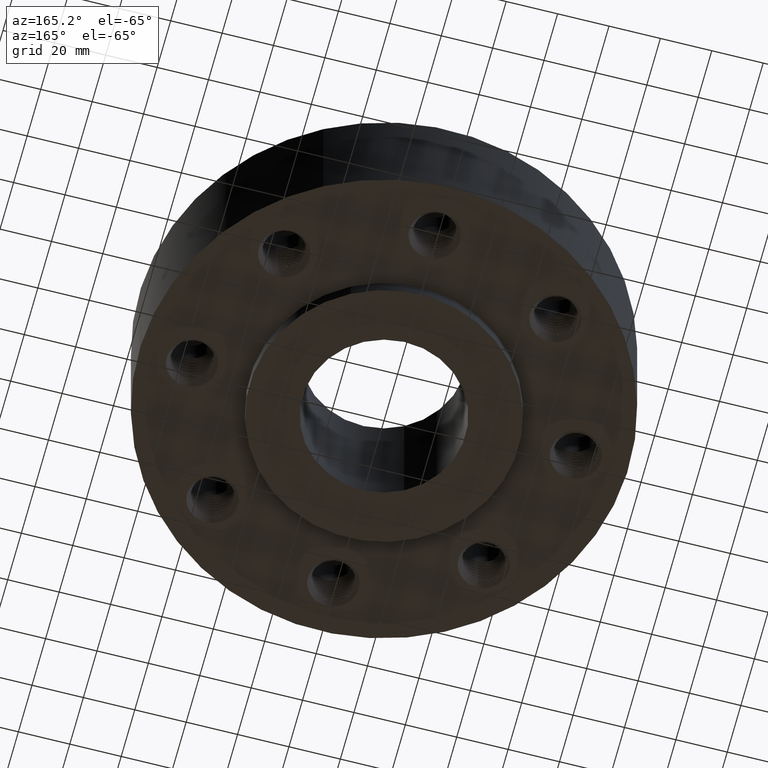
[diagram: clean part render]
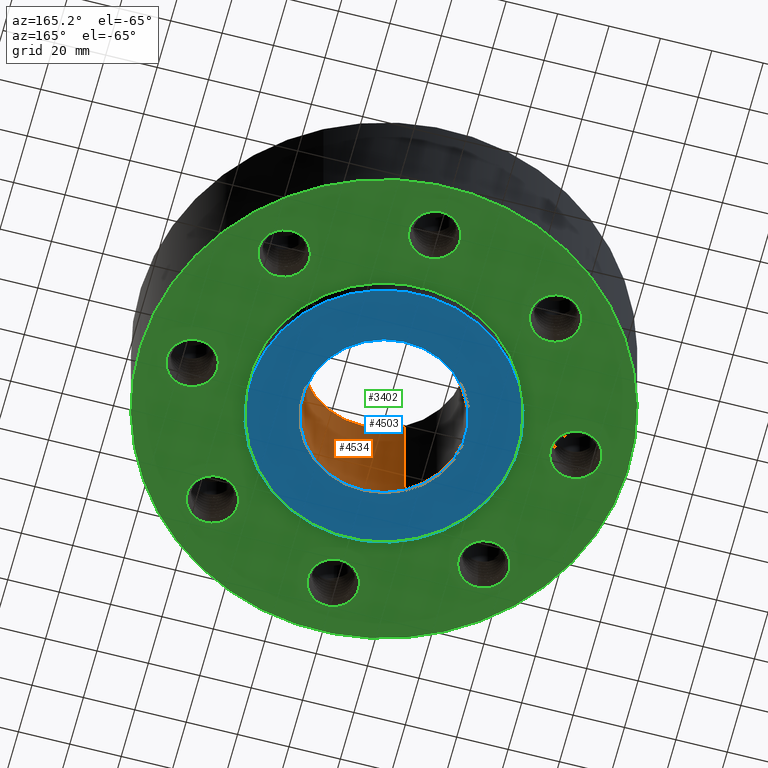
[diagram: same view with three faces highlighted in distinct colors, each labeled with its STEP entity id]
A machine part, auxiliary view with three faces highlighted in distinct colors.
Their STEP definitions:

[orange] entity #4534 — the highlighted cylindrical surface (partial cylindrical patch) has radius 31.75 mm, axis along (0, 0, -1).
#4487=AXIS2_PLACEMENT_3D('Circle Axis2P3D',#4485,#4486,$) ;
#4507=AXIS2_PLACEMENT_3D('Cylinder Axis2P3D',#4504,#4505,#4506) ;
#4511=AXIS2_PLACEMENT_3D('Circle Axis2P3D',#4509,#4510,$) ;
#4485=CARTESIAN_POINT('Axis2P3D Location',(0.,0.,-0.250000000001)) ;
#4489=CARTESIAN_POINT('Vertex',(0.599281923258,1.09697820237,-0.250000000001)) ;
#4491=CARTESIAN_POINT('Vertex',(-0.599281923258,-1.09697820237,-0.250000000001)) ;
#4504=CARTESIAN_POINT('Axis2P3D Location',(0.,0.,0.875000000003)) ;
#4509=CARTESIAN_POINT('Axis2P3D Location',(0.,0.,2.00000000001)) ;
#4513=CARTESIAN_POINT('Vertex',(0.599281923258,1.09697820237,2.00000000001)) ;
#4515=CARTESIAN_POINT('Vertex',(-0.599281923258,-1.09697820237,2.00000000001)) ;
#4518=CARTESIAN_POINT('Line Origine',(0.599281923258,1.09697820237,0.875000000003)) ;
#4523=CARTESIAN_POINT('Line Origine',(-0.599281923258,-1.09697820237,0.875000000003)) ;
#4486=DIRECTION('Axis2P3D Direction',(0.,0.,-0.0393700787402)) ;
#4505=DIRECTION('Axis2P3D Direction',(0.,0.,-0.0393700787402)) ;
#4506=DIRECTION('Axis2P3D XDirection',(-0.0188750212049,-0.0345504945626,0.)) ;
#4510=DIRECTION('Axis2P3D Direction',(0.,0.,-0.0393700787402)) ;
#4519=DIRECTION('Vector Direction',(0.,0.,-0.0393700787402)) ;
#4524=DIRECTION('Vector Direction',(0.,0.,-0.0393700787402)) ;
#4520=VECTOR('Line Direction',#4519,0.0393700787402) ;
#4525=VECTOR('Line Direction',#4524,0.0393700787402) ;
#4529=ORIENTED_EDGE('',*,*,#4517,.F.) ;
#4530=ORIENTED_EDGE('',*,*,#4522,.T.) ;
#4531=ORIENTED_EDGE('',*,*,#4493,.T.) ;
#4532=ORIENTED_EDGE('',*,*,#4527,.F.) ;
#4534=ADVANCED_FACE('PartBody',(#4533),#4508,.F.) ;
#4488=CIRCLE('generated circle',#4487,1.25000000001) ;
#4512=CIRCLE('generated circle',#4511,1.25000000001) ;
#4508=CYLINDRICAL_SURFACE('generated cylinder',#4507,1.25000000001) ;
#4493=EDGE_CURVE('',#4490,#4492,#4488,.T.) ;
#4517=EDGE_CURVE('',#4514,#4516,#4512,.T.) ;
#4522=EDGE_CURVE('',#4514,#4490,#4521,.T.) ;
#4527=EDGE_CURVE('',#4516,#4492,#4526,.T.) ;
#4528=EDGE_LOOP('',(#4529,#4530,#4531,#4532)) ;
#4533=FACE_OUTER_BOUND('',#4528,.T.) ;
#4521=LINE('Line',#4518,#4520) ;
#4526=LINE('Line',#4523,#4525) ;
#4490=VERTEX_POINT('',#4489) ;
#4492=VERTEX_POINT('',#4491) ;
#4514=VERTEX_POINT('',#4513) ;
#4516=VERTEX_POINT('',#4515) ;

[blue] entity #4503 — the highlighted planar face has unit normal (0, 0, -1).
#3453=AXIS2_PLACEMENT_3D('Circle Axis2P3D',#3451,#3452,$) ;
#3479=AXIS2_PLACEMENT_3D('Circle Axis2P3D',#3477,#3478,$) ;
#4479=AXIS2_PLACEMENT_3D('Plane Axis2P3D',#4476,#4477,#4478) ;
#4487=AXIS2_PLACEMENT_3D('Circle Axis2P3D',#4485,#4486,$) ;
#4496=AXIS2_PLACEMENT_3D('Circle Axis2P3D',#4494,#4495,$) ;
#3451=CARTESIAN_POINT('Axis2P3D Location',(0.,0.,-0.250000000001)) ;
#3455=CARTESIAN_POINT('Vertex',(0.987616609529,1.8078200775,-0.250000000001)) ;
#3457=CARTESIAN_POINT('Vertex',(-0.987616609529,-1.8078200775,-0.250000000001)) ;
#3477=CARTESIAN_POINT('Axis2P3D Location',(0.,0.,-0.250000000001)) ;
#4476=CARTESIAN_POINT('Axis2P3D Location',(0.,2.06000000001,-0.250000000001)) ;
#4485=CARTESIAN_POINT('Axis2P3D Location',(0.,0.,-0.250000000001)) ;
#4489=CARTESIAN_POINT('Vertex',(0.599281923258,1.09697820237,-0.250000000001)) ;
#4491=CARTESIAN_POINT('Vertex',(-0.599281923258,-1.09697820237,-0.250000000001)) ;
#4494=CARTESIAN_POINT('Axis2P3D Location',(0.,0.,-0.250000000001)) ;
#3452=DIRECTION('Axis2P3D Direction',(0.,0.,-0.0393700787402)) ;
#3478=DIRECTION('Axis2P3D Direction',(0.,0.,-0.0393700787402)) ;
#4477=DIRECTION('Axis2P3D Direction',(0.,0.,-0.0393700787402)) ;
#4478=DIRECTION('Axis2P3D XDirection',(0.0393700787402,0.,0.)) ;
#4486=DIRECTION('Axis2P3D Direction',(0.,0.,-0.0393700787402)) ;
#4495=DIRECTION('Axis2P3D Direction',(0.,0.,-0.0393700787402)) ;
#4482=ORIENTED_EDGE('',*,*,#3481,.T.) ;
#4483=ORIENTED_EDGE('',*,*,#3459,.T.) ;
#4500=ORIENTED_EDGE('',*,*,#4493,.F.) ;
#4501=ORIENTED_EDGE('',*,*,#4498,.F.) ;
#4502=FACE_BOUND('',#4499,.T.) ;
#4503=ADVANCED_FACE('PartBody',(#4484,#4502),#4480,.T.) ;
#3454=CIRCLE('generated circle',#3453,2.06000000001) ;
#3480=CIRCLE('generated circle',#3479,2.06000000001) ;
#4488=CIRCLE('generated circle',#4487,1.25000000001) ;
#4497=CIRCLE('generated circle',#4496,1.25000000001) ;
#3459=EDGE_CURVE('',#3456,#3458,#3454,.T.) ;
#3481=EDGE_CURVE('',#3458,#3456,#3480,.T.) ;
#4493=EDGE_CURVE('',#4490,#4492,#4488,.T.) ;
#4498=EDGE_CURVE('',#4492,#4490,#4497,.T.) ;
#4481=EDGE_LOOP('',(#4482,#4483)) ;
#4499=EDGE_LOOP('',(#4500,#4501)) ;
#4484=FACE_OUTER_BOUND('',#4481,.T.) ;
#4480=PLANE('',#4479) ;
#3456=VERTEX_POINT('',#3455) ;
#3458=VERTEX_POINT('',#3457) ;
#4490=VERTEX_POINT('',#4489) ;
#4492=VERTEX_POINT('',#4491) ;

[green] entity #3402 — the highlighted planar face has unit normal (0, 0, -1).
#3154=AXIS2_PLACEMENT_3D('Circle Axis2P3D',#3152,#3153,$) ;
#3220=AXIS2_PLACEMENT_3D('Circle Axis2P3D',#3218,#3219,$) ;
#3234=AXIS2_PLACEMENT_3D('Plane Axis2P3D',#3231,#3232,#3233) ;
#3238=AXIS2_PLACEMENT_3D('Circle Axis2P3D',#3236,#3237,$) ;
#3247=AXIS2_PLACEMENT_3D('Circle Axis2P3D',#3245,#3246,$) ;
#3260=AXIS2_PLACEMENT_3D('Circle Axis2P3D',#3258,#3259,$) ;
#3269=AXIS2_PLACEMENT_3D('Circle Axis2P3D',#3267,#3268,$) ;
#3278=AXIS2_PLACEMENT_3D('Circle Axis2P3D',#3276,#3277,$) ;
#3287=AXIS2_PLACEMENT_3D('Circle Axis2P3D',#3285,#3286,$) ;
#3296=AXIS2_PLACEMENT_3D('Circle Axis2P3D',#3294,#3295,$) ;
#3305=AXIS2_PLACEMENT_3D('Circle Axis2P3D',#3303,#3304,$) ;
#3314=AXIS2_PLACEMENT_3D('Circle Axis2P3D',#3312,#3313,$) ;
#3323=AXIS2_PLACEMENT_3D('Circle Axis2P3D',#3321,#3322,$) ;
#3332=AXIS2_PLACEMENT_3D('Circle Axis2P3D',#3330,#3331,$) ;
#3341=AXIS2_PLACEMENT_3D('Circle Axis2P3D',#3339,#3340,$) ;
#3350=AXIS2_PLACEMENT_3D('Circle Axis2P3D',#3348,#3349,$) ;
#3359=AXIS2_PLACEMENT_3D('Circle Axis2P3D',#3357,#3358,$) ;
#3368=AXIS2_PLACEMENT_3D('Circle Axis2P3D',#3366,#3367,$) ;
#3377=AXIS2_PLACEMENT_3D('Circle Axis2P3D',#3375,#3376,$) ;
#3386=AXIS2_PLACEMENT_3D('Circle Axis2P3D',#3384,#3385,$) ;
#3395=AXIS2_PLACEMENT_3D('Circle Axis2P3D',#3393,#3394,$) ;
#3149=CARTESIAN_POINT('Vertex',(2.4195276081,2.26498295951,0.)) ;
#3152=CARTESIAN_POINT('Axis2P3D Location',(2.0788939367,2.0788939367,0.)) ;
#3156=CARTESIAN_POINT('Vertex',(1.7382602653,1.89280491389,0.)) ;
#3218=CARTESIAN_POINT('Axis2P3D Location',(2.0788939367,2.0788939367,0.)) ;
#3231=CARTESIAN_POINT('Axis2P3D Location',(0.,3.75000000002,0.)) ;
#3236=CARTESIAN_POINT('Axis2P3D Location',(0.,0.,0.)) ;
#3240=CARTESIAN_POINT('Vertex',(-1.79784576977,-3.2909346071,-3.83245491335E-014)) ;
#3242=CARTESIAN_POINT('Vertex',(1.79784576977,3.2909346071,-3.83245491335E-014)) ;
#3245=CARTESIAN_POINT('Axis2P3D Location',(0.,0.,0.)) ;
#3258=CARTESIAN_POINT('Axis2P3D Location',(0.,0.,0.)) ;
#3262=CARTESIAN_POINT('Vertex',(0.987616609529,1.8078200775,-2.81139940724E-014)) ;
#3264=CARTESIAN_POINT('Vertex',(-0.987616609529,-1.8078200775,-2.81139940724E-014)) ;
#3267=CARTESIAN_POINT('Axis2P3D Location',(0.,0.,0.)) ;
#3276=CARTESIAN_POINT('Axis2P3D Location',(2.94000000001,5.59482469102E-016,0.)) ;
#3280=CARTESIAN_POINT('Vertex',(3.31244918889,-0.109279569013,0.)) ;
#3282=CARTESIAN_POINT('Vertex',(2.56755081113,0.109279569013,1.74838271595E-017)) ;
#3285=CARTESIAN_POINT('Axis2P3D Location',(2.94000000001,1.1189649382E-015,0.)) ;
#3294=CARTESIAN_POINT('Axis2P3D Location',(2.0788939367,-2.0788939367,0.)) ;
#3298=CARTESIAN_POINT('Vertex',(2.26498295951,-2.4195276081,0.)) ;
#3300=CARTESIAN_POINT('Vertex',(1.89280491389,-1.7382602653,0.)) ;
#3303=CARTESIAN_POINT('Axis2P3D Location',(2.0788939367,-2.0788939367,0.)) ;
#3312=CARTESIAN_POINT('Axis2P3D Location',(1.43367382708E-015,-2.94000000001,0.)) ;
#3316=CARTESIAN_POINT('Vertex',(-0.109279569013,-3.31244918889,0.)) ;
#3318=CARTESIAN_POINT('Vertex',(0.109279569013,-2.56755081113,6.99353086378E-017)) ;
#3321=CARTESIAN_POINT('Axis2P3D Location',(7.69288395016E-016,-2.94000000001,0.)) ;
#3330=CARTESIAN_POINT('Axis2P3D Location',(-2.0788939367,-2.0788939367,0.)) ;
#3334=CARTESIAN_POINT('Vertex',(-2.4195276081,-2.26498295951,0.)) ;
#3336=CARTESIAN_POINT('Vertex',(-1.7382602653,-1.89280491389,0.)) ;
#3339=CARTESIAN_POINT('Axis2P3D Location',(-2.0788939367,-2.0788939367,0.)) ;
#3348=CARTESIAN_POINT('Axis2P3D Location',(-2.94000000001,-5.59482469102E-016,0.)) ;
#3352=CARTESIAN_POINT('Vertex',(-3.31244918889,0.109279569013,0.)) ;
#3354=CARTESIAN_POINT('Vertex',(-2.56755081113,-0.109279569013,2.36031666653E-016)) ;
#3357=CARTESIAN_POINT('Axis2P3D Location',(-2.94000000001,-5.59482469102E-016,0.)) ;
#3366=CARTESIAN_POINT('Axis2P3D Location',(-2.0788939367,2.0788939367,0.)) ;
#3370=CARTESIAN_POINT('Vertex',(-2.26498295951,2.4195276081,0.)) ;
#3372=CARTESIAN_POINT('Vertex',(-1.89280491389,1.7382602653,0.)) ;
#3375=CARTESIAN_POINT('Axis2P3D Location',(-2.0788939367,2.0788939367,0.)) ;
#3384=CARTESIAN_POINT('Axis2P3D Location',(-1.32877086412E-015,2.94000000001,0.)) ;
#3388=CARTESIAN_POINT('Vertex',(0.109279569013,3.31244918889,0.)) ;
#3390=CARTESIAN_POINT('Vertex',(-0.109279569013,2.56755081113,8.74191357973E-018)) ;
#3393=CARTESIAN_POINT('Axis2P3D Location',(-1.53857679003E-015,2.94000000001,0.)) ;
#3153=DIRECTION('Axis2P3D Direction',(0.,0.,-0.0393700787402)) ;
#3219=DIRECTION('Axis2P3D Direction',(0.,0.,-0.0393700787402)) ;
#3232=DIRECTION('Axis2P3D Direction',(0.,0.,-0.0393700787402)) ;
#3233=DIRECTION('Axis2P3D XDirection',(0.0393700787402,0.,0.)) ;
#3237=DIRECTION('Axis2P3D Direction',(0.,0.,-0.0393700787402)) ;
#3246=DIRECTION('Axis2P3D Direction',(0.,0.,-0.0393700787402)) ;
#3259=DIRECTION('Axis2P3D Direction',(0.,0.,-0.0393700787402)) ;
#3268=DIRECTION('Axis2P3D Direction',(0.,0.,-0.0393700787402)) ;
#3277=DIRECTION('Axis2P3D Direction',(0.,0.,-0.0393700787402)) ;
#3286=DIRECTION('Axis2P3D Direction',(0.,0.,-0.0393700787402)) ;
#3295=DIRECTION('Axis2P3D Direction',(0.,0.,-0.0393700787402)) ;
#3304=DIRECTION('Axis2P3D Direction',(0.,0.,-0.0393700787402)) ;
#3313=DIRECTION('Axis2P3D Direction',(0.,0.,-0.0393700787402)) ;
#3322=DIRECTION('Axis2P3D Direction',(0.,0.,-0.0393700787402)) ;
#3331=DIRECTION('Axis2P3D Direction',(0.,0.,-0.0393700787402)) ;
#3340=DIRECTION('Axis2P3D Direction',(0.,0.,-0.0393700787402)) ;
#3349=DIRECTION('Axis2P3D Direction',(0.,0.,-0.0393700787402)) ;
#3358=DIRECTION('Axis2P3D Direction',(0.,0.,-0.0393700787402)) ;
#3367=DIRECTION('Axis2P3D Direction',(0.,0.,-0.0393700787402)) ;
#3376=DIRECTION('Axis2P3D Direction',(0.,0.,-0.0393700787402)) ;
#3385=DIRECTION('Axis2P3D Direction',(0.,0.,-0.0393700787402)) ;
#3394=DIRECTION('Axis2P3D Direction',(0.,0.,-0.0393700787402)) ;
#3251=ORIENTED_EDGE('',*,*,#3244,.T.) ;
#3252=ORIENTED_EDGE('',*,*,#3249,.T.) ;
#3255=ORIENTED_EDGE('',*,*,#3222,.F.) ;
#3256=ORIENTED_EDGE('',*,*,#3158,.F.) ;
#3273=ORIENTED_EDGE('',*,*,#3266,.F.) ;
#3274=ORIENTED_EDGE('',*,*,#3271,.F.) ;
#3291=ORIENTED_EDGE('',*,*,#3284,.F.) ;
#3292=ORIENTED_EDGE('',*,*,#3289,.F.) ;
#3309=ORIENTED_EDGE('',*,*,#3302,.F.) ;
#3310=ORIENTED_EDGE('',*,*,#3307,.F.) ;
#3327=ORIENTED_EDGE('',*,*,#3320,.F.) ;
#3328=ORIENTED_EDGE('',*,*,#3325,.F.) ;
#3345=ORIENTED_EDGE('',*,*,#3338,.F.) ;
#3346=ORIENTED_EDGE('',*,*,#3343,.F.) ;
#3363=ORIENTED_EDGE('',*,*,#3356,.F.) ;
#3364=ORIENTED_EDGE('',*,*,#3361,.F.) ;
#3381=ORIENTED_EDGE('',*,*,#3374,.F.) ;
#3382=ORIENTED_EDGE('',*,*,#3379,.F.) ;
#3399=ORIENTED_EDGE('',*,*,#3392,.F.) ;
#3400=ORIENTED_EDGE('',*,*,#3397,.F.) ;
#3257=FACE_BOUND('',#3254,.T.) ;
#3275=FACE_BOUND('',#3272,.T.) ;
#3293=FACE_BOUND('',#3290,.T.) ;
#3311=FACE_BOUND('',#3308,.T.) ;
#3329=FACE_BOUND('',#3326,.T.) ;
#3347=FACE_BOUND('',#3344,.T.) ;
#3365=FACE_BOUND('',#3362,.T.) ;
#3383=FACE_BOUND('',#3380,.T.) ;
#3401=FACE_BOUND('',#3398,.T.) ;
#3402=ADVANCED_FACE('PartBody',(#3253,#3257,#3275,#3293,#3311,#3329,#3347,#3365,#3383,#3401),#3235,.T.) ;
#3155=CIRCLE('generated circle',#3154,0.388150000002) ;
#3221=CIRCLE('generated circle',#3220,0.388150000002) ;
#3239=CIRCLE('generated circle',#3238,3.75000000002) ;
#3248=CIRCLE('generated circle',#3247,3.75000000002) ;
#3261=CIRCLE('generated circle',#3260,2.06000000001) ;
#3270=CIRCLE('generated circle',#3269,2.06000000001) ;
#3279=CIRCLE('generated circle',#3278,0.388150000002) ;
#3288=CIRCLE('generated circle',#3287,0.388150000002) ;
#3297=CIRCLE('generated circle',#3296,0.388150000002) ;
#3306=CIRCLE('generated circle',#3305,0.388150000002) ;
#3315=CIRCLE('generated circle',#3314,0.388150000002) ;
#3324=CIRCLE('generated circle',#3323,0.388150000002) ;
#3333=CIRCLE('generated circle',#3332,0.388150000002) ;
#3342=CIRCLE('generated circle',#3341,0.388150000002) ;
#3351=CIRCLE('generated circle',#3350,0.388150000002) ;
#3360=CIRCLE('generated circle',#3359,0.388150000002) ;
#3369=CIRCLE('generated circle',#3368,0.388150000002) ;
#3378=CIRCLE('generated circle',#3377,0.388150000002) ;
#3387=CIRCLE('generated circle',#3386,0.388150000002) ;
#3396=CIRCLE('generated circle',#3395,0.388150000002) ;
#3158=EDGE_CURVE('',#3150,#3157,#3155,.T.) ;
#3222=EDGE_CURVE('',#3157,#3150,#3221,.T.) ;
#3244=EDGE_CURVE('',#3241,#3243,#3239,.T.) ;
#3249=EDGE_CURVE('',#3243,#3241,#3248,.T.) ;
#3266=EDGE_CURVE('',#3263,#3265,#3261,.T.) ;
#3271=EDGE_CURVE('',#3265,#3263,#3270,.T.) ;
#3284=EDGE_CURVE('',#3281,#3283,#3279,.T.) ;
#3289=EDGE_CURVE('',#3283,#3281,#3288,.T.) ;
#3302=EDGE_CURVE('',#3299,#3301,#3297,.T.) ;
#3307=EDGE_CURVE('',#3301,#3299,#3306,.T.) ;
#3320=EDGE_CURVE('',#3317,#3319,#3315,.T.) ;
#3325=EDGE_CURVE('',#3319,#3317,#3324,.T.) ;
#3338=EDGE_CURVE('',#3335,#3337,#3333,.T.) ;
#3343=EDGE_CURVE('',#3337,#3335,#3342,.T.) ;
#3356=EDGE_CURVE('',#3353,#3355,#3351,.T.) ;
#3361=EDGE_CURVE('',#3355,#3353,#3360,.T.) ;
#3374=EDGE_CURVE('',#3371,#3373,#3369,.T.) ;
#3379=EDGE_CURVE('',#3373,#3371,#3378,.T.) ;
#3392=EDGE_CURVE('',#3389,#3391,#3387,.T.) ;
#3397=EDGE_CURVE('',#3391,#3389,#3396,.T.) ;
#3250=EDGE_LOOP('',(#3251,#3252)) ;
#3254=EDGE_LOOP('',(#3255,#3256)) ;
#3272=EDGE_LOOP('',(#3273,#3274)) ;
#3290=EDGE_LOOP('',(#3291,#3292)) ;
#3308=EDGE_LOOP('',(#3309,#3310)) ;
#3326=EDGE_LOOP('',(#3327,#3328)) ;
#3344=EDGE_LOOP('',(#3345,#3346)) ;
#3362=EDGE_LOOP('',(#3363,#3364)) ;
#3380=EDGE_LOOP('',(#3381,#3382)) ;
#3398=EDGE_LOOP('',(#3399,#3400)) ;
#3253=FACE_OUTER_BOUND('',#3250,.T.) ;
#3235=PLANE('',#3234) ;
#3150=VERTEX_POINT('',#3149) ;
#3157=VERTEX_POINT('',#3156) ;
#3241=VERTEX_POINT('',#3240) ;
#3243=VERTEX_POINT('',#3242) ;
#3263=VERTEX_POINT('',#3262) ;
#3265=VERTEX_POINT('',#3264) ;
#3281=VERTEX_POINT('',#3280) ;
#3283=VERTEX_POINT('',#3282) ;
#3299=VERTEX_POINT('',#3298) ;
#3301=VERTEX_POINT('',#3300) ;
#3317=VERTEX_POINT('',#3316) ;
#3319=VERTEX_POINT('',#3318) ;
#3335=VERTEX_POINT('',#3334) ;
#3337=VERTEX_POINT('',#3336) ;
#3353=VERTEX_POINT('',#3352) ;
#3355=VERTEX_POINT('',#3354) ;
#3371=VERTEX_POINT('',#3370) ;
#3373=VERTEX_POINT('',#3372) ;
#3389=VERTEX_POINT('',#3388) ;
#3391=VERTEX_POINT('',#3390) ;